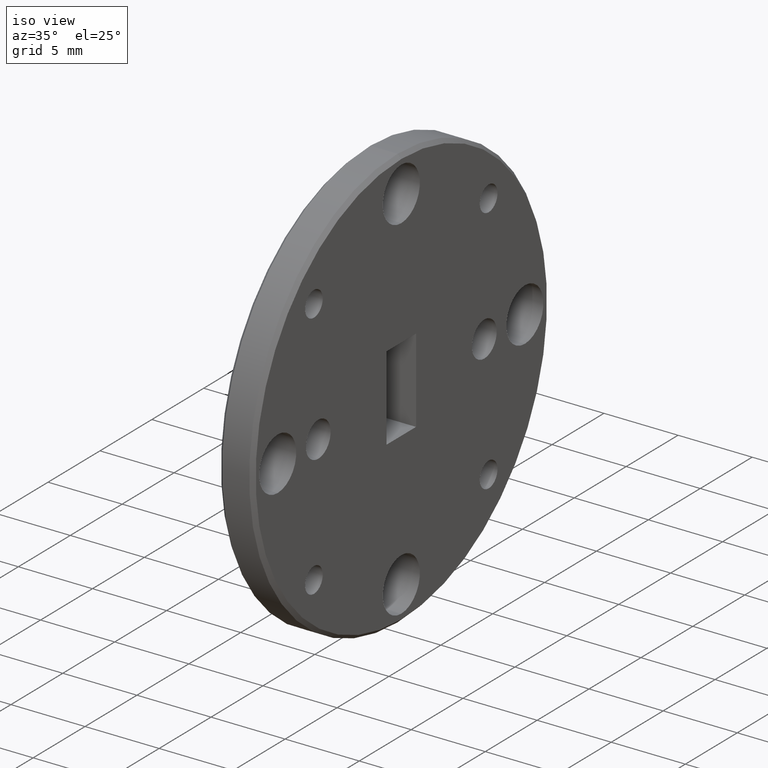
[diagram: clean part render]
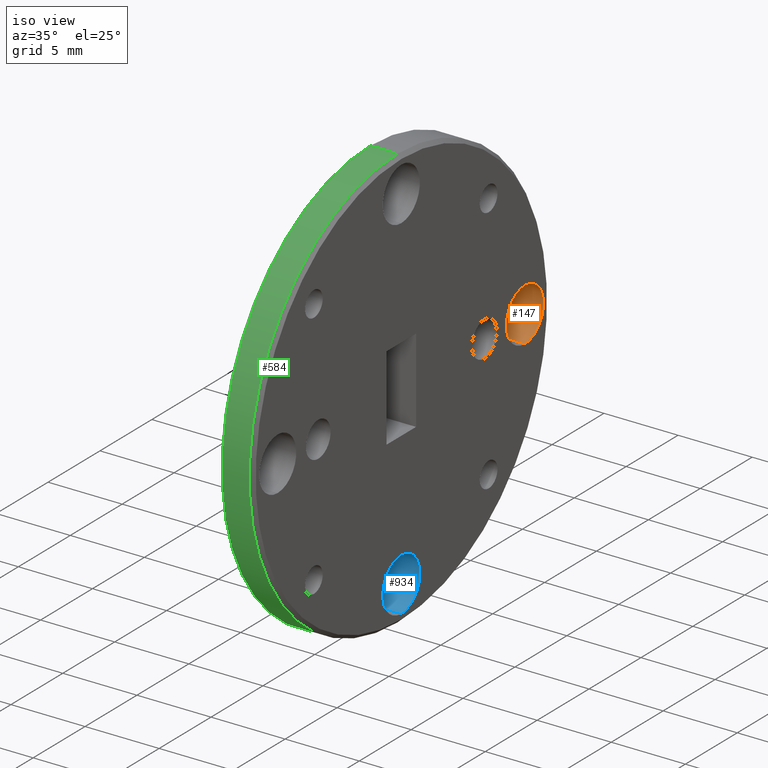
[diagram: same view with three faces highlighted in distinct colors, each labeled with its STEP entity id]
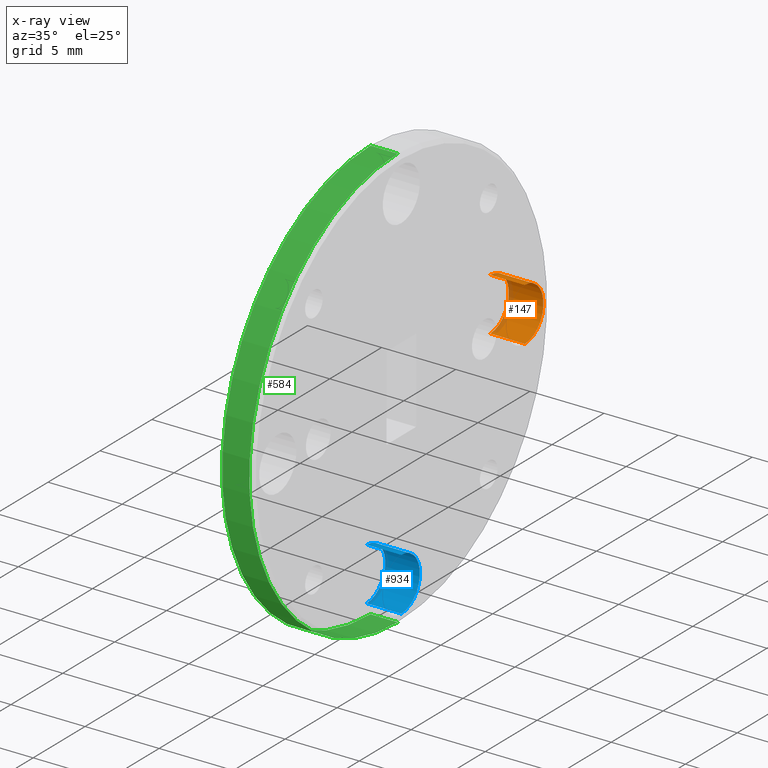
[diagram: x-ray of the same camera — body ghosted, the three highlighted faces saturated]
A machine part, iso view with three faces highlighted in distinct colors.
The next image is the same camera in x-ray (body ghosted, the three faces saturated) — at least one of them is partly hidden behind the body in this view.
Their STEP definitions:

[orange] entity #147 — the highlighted cylindrical surface (edge-blend (fillet) strip) has radius 1.786 mm, axis along (-1, -0, -0).
#53 = AXIS2_PLACEMENT_3D ( 'NONE', #795, #1071, #716 ) ;
#71 = FACE_OUTER_BOUND ( 'NONE', #444, .T. ) ;
#84 = CARTESIAN_POINT ( 'NONE',  ( -5.262123598916295500E-017, 0.4687500000000000000, 0.0000000000000000000 ) ) ;
#137 = CARTESIAN_POINT ( 'NONE',  ( 0.09200000000000004000, 0.4687500000000000000, 0.0000000000000000000 ) ) ;
#143 = VERTEX_POINT ( 'NONE', #350 ) ;
#147 = ADVANCED_FACE ( 'NONE', ( #71 ), #938, .F. ) ;
#160 = CARTESIAN_POINT ( 'NONE',  ( 0.09200000000000004000, 0.4687500000000000000, -0.07031499999999975300 ) ) ;
#272 = CIRCLE ( 'NONE', #534, 0.07031499999999975300 ) ;
#290 = ORIENTED_EDGE ( 'NONE', *, *, #1078, .T. ) ;
#309 = LINE ( 'NONE', #481, #410 ) ;
#350 = CARTESIAN_POINT ( 'NONE',  ( -5.262123598916295500E-017, 0.4687500000000000000, -0.07031499999999954500 ) ) ;
#361 = DIRECTION ( 'NONE',  ( 0.0000000000000000000, 0.0000000000000000000, 1.000000000000000000 ) ) ;
#367 = CIRCLE ( 'NONE', #812, 0.07031499999999954500 ) ;
#410 = VECTOR ( 'NONE', #581, 39.37007874015748100 ) ;
#444 = EDGE_LOOP ( 'NONE', ( #518, #1128, #825, #290 ) ) ;
#447 = DIRECTION ( 'NONE',  ( -1.000000000000000000, -0.0000000000000000000, -0.0000000000000000000 ) ) ;
#481 = CARTESIAN_POINT ( 'NONE',  ( 0.0000000000000000000, 0.4687500000000000000, -0.07031499999999975300 ) ) ;
#509 = LINE ( 'NONE', #975, #987 ) ;
#515 = CARTESIAN_POINT ( 'NONE',  ( -5.262123598916295500E-017, 0.4687500000000000000, 0.07031499999999954500 ) ) ;
#518 = ORIENTED_EDGE ( 'NONE', *, *, #790, .F. ) ;
#534 = AXIS2_PLACEMENT_3D ( 'NONE', #137, #751, #1111 ) ;
#545 = CARTESIAN_POINT ( 'NONE',  ( 0.09200000000000004000, 0.4687500000000000000, 0.07031499999999975300 ) ) ;
#570 = EDGE_CURVE ( 'NONE', #917, #725, #272, .T. ) ;
#581 = DIRECTION ( 'NONE',  ( -1.000000000000000000, -0.0000000000000000000, -0.0000000000000000000 ) ) ;
#622 = DIRECTION ( 'NONE',  ( -1.000000000000000000, -0.0000000000000000000, -0.0000000000000000000 ) ) ;
#716 = DIRECTION ( 'NONE',  ( 0.0000000000000000000, 0.0000000000000000000, 1.000000000000000000 ) ) ;
#725 = VERTEX_POINT ( 'NONE', #545 ) ;
#751 = DIRECTION ( 'NONE',  ( 1.000000000000000000, -0.0000000000000000000, -0.0000000000000000000 ) ) ;
#790 = EDGE_CURVE ( 'NONE', #917, #143, #309, .T. ) ;
#795 = CARTESIAN_POINT ( 'NONE',  ( 0.0000000000000000000, 0.4687500000000000000, 0.0000000000000000000 ) ) ;
#812 = AXIS2_PLACEMENT_3D ( 'NONE', #84, #622, #361 ) ;
#825 = ORIENTED_EDGE ( 'NONE', *, *, #1144, .T. ) ;
#917 = VERTEX_POINT ( 'NONE', #160 ) ;
#938 = CYLINDRICAL_SURFACE ( 'NONE', #53, 0.07031499999999975300 ) ;
#975 = CARTESIAN_POINT ( 'NONE',  ( 0.0000000000000000000, 0.4687500000000000000, 0.07031499999999975300 ) ) ;
#987 = VECTOR ( 'NONE', #447, 39.37007874015748100 ) ;
#1065 = VERTEX_POINT ( 'NONE', #515 ) ;
#1071 = DIRECTION ( 'NONE',  ( -1.000000000000000000, -0.0000000000000000000, -0.0000000000000000000 ) ) ;
#1078 = EDGE_CURVE ( 'NONE', #1065, #143, #367, .T. ) ;
#1111 = DIRECTION ( 'NONE',  ( 0.0000000000000000000, 0.0000000000000000000, -1.000000000000000000 ) ) ;
#1128 = ORIENTED_EDGE ( 'NONE', *, *, #570, .T. ) ;
#1144 = EDGE_CURVE ( 'NONE', #725, #1065, #509, .T. ) ;

[blue] entity #934 — the highlighted cylindrical surface (edge-blend (fillet) strip) has radius 1.786 mm, axis along (-1, -0, -0).
#54 = EDGE_CURVE ( 'NONE', #72, #223, #846, .T. ) ;
#72 = VERTEX_POINT ( 'NONE', #173 ) ;
#133 = AXIS2_PLACEMENT_3D ( 'NONE', #689, #965, #424 ) ;
#150 = EDGE_LOOP ( 'NONE', ( #1094, #860, #602, #573 ) ) ;
#158 = FACE_OUTER_BOUND ( 'NONE', #150, .T. ) ;
#167 = DIRECTION ( 'NONE',  ( -1.000000000000000000, -0.0000000000000000000, -0.0000000000000000000 ) ) ;
#173 = CARTESIAN_POINT ( 'NONE',  ( -5.262123598916295500E-017, 0.0000000000000000000, -0.3984350000000004800 ) ) ;
#174 = CYLINDRICAL_SURFACE ( 'NONE', #727, 0.07031499999999975300 ) ;
#223 = VERTEX_POINT ( 'NONE', #438 ) ;
#301 = DIRECTION ( 'NONE',  ( 0.0000000000000000000, 0.0000000000000000000, -1.000000000000000000 ) ) ;
#335 = VERTEX_POINT ( 'NONE', #912 ) ;
#424 = DIRECTION ( 'NONE',  ( 0.0000000000000000000, 0.0000000000000000000, 1.000000000000000000 ) ) ;
#438 = CARTESIAN_POINT ( 'NONE',  ( -5.262123598916295500E-017, 8.611103968204568300E-018, -0.5390649999999995700 ) ) ;
#474 = LINE ( 'NONE', #633, #778 ) ;
#498 = AXIS2_PLACEMENT_3D ( 'NONE', #1099, #747, #301 ) ;
#573 = ORIENTED_EDGE ( 'NONE', *, *, #54, .T. ) ;
#598 = VECTOR ( 'NONE', #793, 39.37007874015748100 ) ;
#602 = ORIENTED_EDGE ( 'NONE', *, *, #1014, .T. ) ;
#607 = DIRECTION ( 'NONE',  ( 0.0000000000000000000, 0.0000000000000000000, 1.000000000000000000 ) ) ;
#633 = CARTESIAN_POINT ( 'NONE',  ( 0.0000000000000000000, 8.611103968204585200E-018, -0.5390649999999997900 ) ) ;
#651 = DIRECTION ( 'NONE',  ( -1.000000000000000000, -0.0000000000000000000, -0.0000000000000000000 ) ) ;
#657 = LINE ( 'NONE', #1136, #598 ) ;
#689 = CARTESIAN_POINT ( 'NONE',  ( -5.262123598916295500E-017, 0.0000000000000000000, -0.4687500000000000000 ) ) ;
#702 = EDGE_CURVE ( 'NONE', #335, #223, #474, .T. ) ;
#727 = AXIS2_PLACEMENT_3D ( 'NONE', #780, #167, #607 ) ;
#747 = DIRECTION ( 'NONE',  ( 1.000000000000000000, -0.0000000000000000000, -0.0000000000000000000 ) ) ;
#767 = EDGE_CURVE ( 'NONE', #335, #916, #948, .T. ) ;
#778 = VECTOR ( 'NONE', #651, 39.37007874015748100 ) ;
#780 = CARTESIAN_POINT ( 'NONE',  ( 0.0000000000000000000, 0.0000000000000000000, -0.4687500000000000000 ) ) ;
#793 = DIRECTION ( 'NONE',  ( -1.000000000000000000, -0.0000000000000000000, -0.0000000000000000000 ) ) ;
#846 = CIRCLE ( 'NONE', #133, 0.07031499999999954500 ) ;
#860 = ORIENTED_EDGE ( 'NONE', *, *, #767, .T. ) ;
#912 = CARTESIAN_POINT ( 'NONE',  ( 0.09200000000000004000, 8.611103968204586800E-018, -0.5390649999999997900 ) ) ;
#916 = VERTEX_POINT ( 'NONE', #1013 ) ;
#934 = ADVANCED_FACE ( 'NONE', ( #158 ), #174, .F. ) ;
#948 = CIRCLE ( 'NONE', #498, 0.07031499999999975300 ) ;
#965 = DIRECTION ( 'NONE',  ( -1.000000000000000000, -0.0000000000000000000, -0.0000000000000000000 ) ) ;
#1013 = CARTESIAN_POINT ( 'NONE',  ( 0.09200000000000004000, 0.0000000000000000000, -0.3984350000000002600 ) ) ;
#1014 = EDGE_CURVE ( 'NONE', #916, #72, #657, .T. ) ;
#1094 = ORIENTED_EDGE ( 'NONE', *, *, #702, .F. ) ;
#1099 = CARTESIAN_POINT ( 'NONE',  ( 0.09200000000000004000, 0.0000000000000000000, -0.4687500000000000000 ) ) ;
#1136 = CARTESIAN_POINT ( 'NONE',  ( 0.0000000000000000000, 0.0000000000000000000, -0.3984350000000002600 ) ) ;

[green] entity #584 — the highlighted cylindrical surface (partial cylindrical patch) has radius 14.2875 mm, axis along (1, -0, -0).
#22 = EDGE_CURVE ( 'NONE', #51, #299, #460, .T. ) ;
#51 = VERTEX_POINT ( 'NONE', #954 ) ;
#78 = VERTEX_POINT ( 'NONE', #1052 ) ;
#162 = ORIENTED_EDGE ( 'NONE', *, *, #735, .T. ) ;
#226 = DIRECTION ( 'NONE',  ( 1.000000000000000000, -0.0000000000000000000, -0.0000000000000000000 ) ) ;
#229 = DIRECTION ( 'NONE',  ( 0.0000000000000000000, 0.0000000000000000000, -1.000000000000000000 ) ) ;
#238 = ORIENTED_EDGE ( 'NONE', *, *, #285, .T. ) ;
#259 = VERTEX_POINT ( 'NONE', #461 ) ;
#260 = EDGE_CURVE ( 'NONE', #78, #299, #614, .T. ) ;
#267 = AXIS2_PLACEMENT_3D ( 'NONE', #764, #226, #229 ) ;
#285 = EDGE_CURVE ( 'NONE', #259, #78, #340, .T. ) ;
#287 = DIRECTION ( 'NONE',  ( -1.000000000000000000, 0.0000000000000000000, 0.0000000000000000000 ) ) ;
#293 = CARTESIAN_POINT ( 'NONE',  ( 0.08200000000000035000, 6.888638245203861900E-017, 0.5625000000000000000 ) ) ;
#295 = CIRCLE ( 'NONE', #992, 0.5625000000000000000 ) ;
#299 = VERTEX_POINT ( 'NONE', #293 ) ;
#330 = EDGE_LOOP ( 'NONE', ( #572, #162, #238, #379 ) ) ;
#340 = LINE ( 'NONE', #720, #411 ) ;
#368 = CYLINDRICAL_SURFACE ( 'NONE', #267, 0.5625000000000000000 ) ;
#374 = DIRECTION ( 'NONE',  ( 0.0000000000000000000, 0.0000000000000000000, -1.000000000000000000 ) ) ;
#379 = ORIENTED_EDGE ( 'NONE', *, *, #260, .T. ) ;
#411 = VECTOR ( 'NONE', #741, 39.37007874015748100 ) ;
#460 = LINE ( 'NONE', #1138, #512 ) ;
#461 = CARTESIAN_POINT ( 'NONE',  ( 0.01000000000000023400, 0.0000000000000000000, -0.5625000000000000000 ) ) ;
#462 = AXIS2_PLACEMENT_3D ( 'NONE', #833, #287, #374 ) ;
#512 = VECTOR ( 'NONE', #874, 39.37007874015748100 ) ;
#572 = ORIENTED_EDGE ( 'NONE', *, *, #22, .F. ) ;
#584 = ADVANCED_FACE ( 'NONE', ( #962 ), #368, .T. ) ;
#614 = CIRCLE ( 'NONE', #462, 0.5625000000000000000 ) ;
#720 = CARTESIAN_POINT ( 'NONE',  ( 0.0000000000000000000, 0.0000000000000000000, -0.5625000000000000000 ) ) ;
#735 = EDGE_CURVE ( 'NONE', #51, #259, #295, .T. ) ;
#741 = DIRECTION ( 'NONE',  ( 1.000000000000000000, -0.0000000000000000000, -0.0000000000000000000 ) ) ;
#764 = CARTESIAN_POINT ( 'NONE',  ( 0.0000000000000000000, 0.0000000000000000000, 0.0000000000000000000 ) ) ;
#822 = DIRECTION ( 'NONE',  ( 1.000000000000000000, -0.0000000000000000000, -0.0000000000000000000 ) ) ;
#833 = CARTESIAN_POINT ( 'NONE',  ( 0.08200000000000035000, 0.0000000000000000000, 0.0000000000000000000 ) ) ;
#874 = DIRECTION ( 'NONE',  ( 1.000000000000000000, -0.0000000000000000000, -0.0000000000000000000 ) ) ;
#901 = DIRECTION ( 'NONE',  ( 0.0000000000000000000, 0.0000000000000000000, 1.000000000000000000 ) ) ;
#954 = CARTESIAN_POINT ( 'NONE',  ( 0.01000000000000023400, 6.888638245203861900E-017, 0.5625000000000000000 ) ) ;
#962 = FACE_OUTER_BOUND ( 'NONE', #330, .T. ) ;
#986 = CARTESIAN_POINT ( 'NONE',  ( 0.01000000000000023400, 0.0000000000000000000, 0.0000000000000000000 ) ) ;
#992 = AXIS2_PLACEMENT_3D ( 'NONE', #986, #822, #901 ) ;
#1052 = CARTESIAN_POINT ( 'NONE',  ( 0.08200000000000035000, 0.0000000000000000000, -0.5625000000000000000 ) ) ;
#1138 = CARTESIAN_POINT ( 'NONE',  ( 0.0000000000000000000, 6.888638245203861900E-017, 0.5625000000000000000 ) ) ;